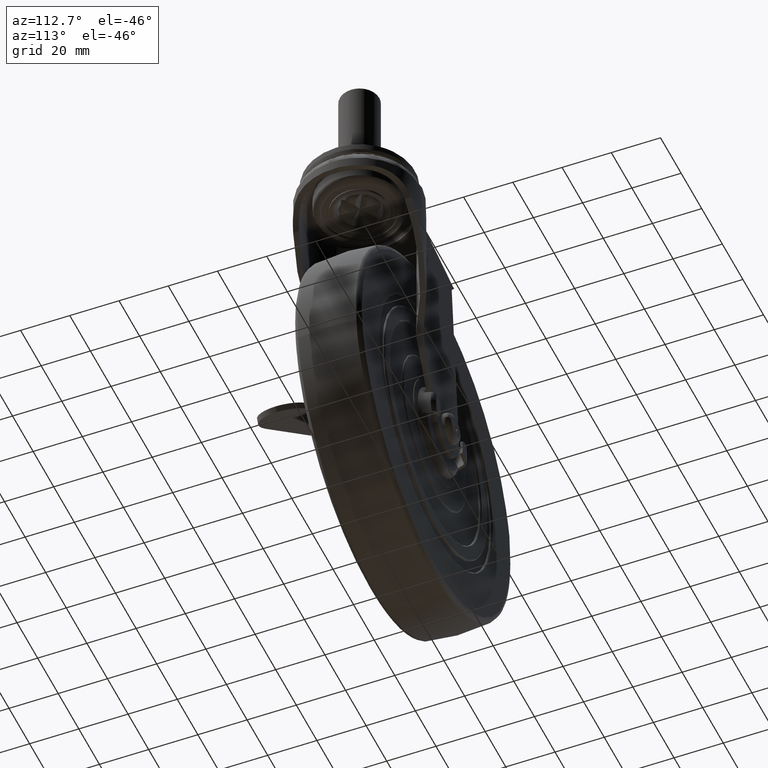
[diagram: clean part render]
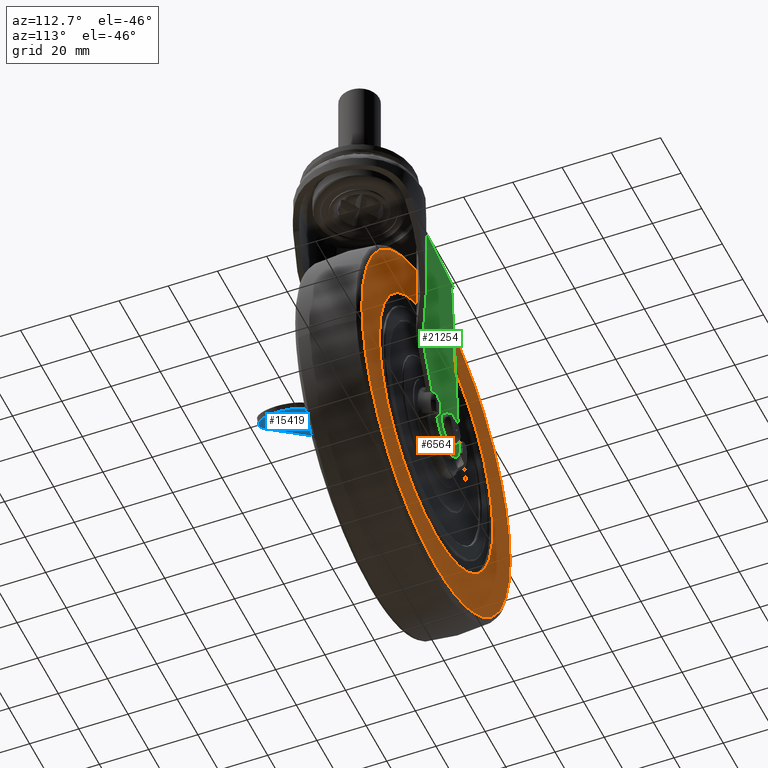
[diagram: same view with three faces highlighted in distinct colors, each labeled with its STEP entity id]
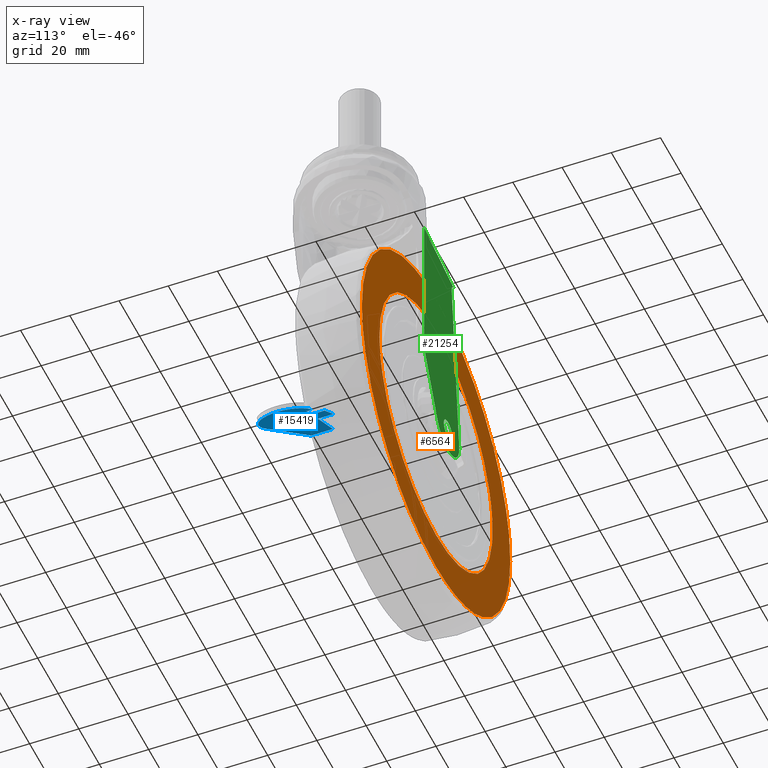
[diagram: x-ray of the same camera — body ghosted, the three highlighted faces saturated]
A machine part, auxiliary view with three faces highlighted in distinct colors.
The next image is the same camera in x-ray (body ghosted, the three faces saturated) — at least one of them is partly hidden behind the body in this view.
Their STEP definitions:

[orange] entity #6564 — the highlighted face is a freeform B-spline surface patch.
#4171=CARTESIAN_POINT('',(54.995668466085057,13.499999668968780,-0.691132332459890));
#4172=VERTEX_POINT('',#4171);
#4182=CARTESIAN_POINT('',(0.0,13.499999668968780,-55.000011048105200));
#4183=VERTEX_POINT('',#4182);
#4184=CARTESIAN_POINT('',(0.0,13.499999668968780,-55.000011048105200));
#4185=CARTESIAN_POINT('',(3.347781942484653,13.499999668968780,-55.000341076088333));
#4186=CARTESIAN_POINT('',(8.927239897805125,13.499999668968760,-54.488947644154479));
#4187=CARTESIAN_POINT('',(16.413846244627230,13.499999668968799,-52.629164713765682));
#4188=CARTESIAN_POINT('',(22.580993613266791,13.499999668968790,-50.292578463047747));
#4189=CARTESIAN_POINT('',(27.933502549120622,13.499999668968790,-47.500123657302566));
#4190=CARTESIAN_POINT('',(33.140719614767903,13.499999668968711,-44.033336507913958));
#4191=CARTESIAN_POINT('',(37.856689479799272,13.499999668968981,-40.085764075532772));
#4192=CARTESIAN_POINT('',(42.056745032800841,13.499999668968529,-35.596299832651752));
#4193=CARTESIAN_POINT('',(45.498373571940007,13.499999668969110,-31.056242675666262));
#4194=CARTESIAN_POINT('',(48.600267459393763,13.499999668968490,-26.011243528702401));
#4195=CARTESIAN_POINT('',(51.195312724148700,13.499999668969020,-20.435448559021012));
#4196=CARTESIAN_POINT('',(53.304053765477789,13.499999668968870,-14.071191661391071));
#4197=CARTESIAN_POINT('',(54.623128346210393,13.499999668968510,-7.605690031383184));
#4198=CARTESIAN_POINT('',(54.967675744143229,13.499999668968981,-2.922790123179348));
#4199=CARTESIAN_POINT('',(54.995668466085057,13.499999668968780,-0.691132332459890));
#4200=B_SPLINE_CURVE_WITH_KNOTS('',3,(#4184,#4185,#4186,#4187,#4188,#4189,#4190,#4191,#4192,#4193,#4194,#4195,#4196,#4197,#4198,#4199),.UNSPECIFIED.,.F.,.U.,(4,1,1,1,1,1,1,1,1,1,1,1,1,4),(0.000000105682389,10.043285382383960,16.738807848603560,23.099589945093410,29.795116193844191,34.816774353317513,41.847134728864098,48.207809127820973,53.229469563336032,58.920650452805710,65.950987468722360,71.642185479836840,79.007288457028011,85.702797099417751),.UNSPECIFIED.);
#4201=EDGE_CURVE('',#4183,#4172,#4200,.T.);
#4203=CARTESIAN_POINT('',(-54.866123052492512,13.499999668968780,3.835329605313900));
#4204=VERTEX_POINT('',#4203);
#4205=CARTESIAN_POINT('',(-54.866123052492512,13.499999668968780,3.835329605313900));
#4206=CARTESIAN_POINT('',(-55.021806254012972,13.499999668968790,1.608484405729714));
#4207=CARTESIAN_POINT('',(-55.069151459829563,13.499999668968790,-3.688184346064365));
#4208=CARTESIAN_POINT('',(-54.035564676681062,13.499999668968700,-11.281503050109819));
#4209=CARTESIAN_POINT('',(-51.769600699594413,13.499999668968959,-19.082604923904661));
#4210=CARTESIAN_POINT('',(-48.403587182004259,13.499999668968620,-26.611103016471741));
#4211=CARTESIAN_POINT('',(-44.004253130844049,13.499999668968840,-33.315848094226730));
#4212=CARTESIAN_POINT('',(-38.542074589162269,13.499999668968790,-39.482625825995846));
#4213=CARTESIAN_POINT('',(-32.006751394409513,13.499999668968661,-45.079406051600472));
#4214=CARTESIAN_POINT('',(-24.885897065271269,13.499999668969220,-49.269841599755203));
#4215=CARTESIAN_POINT('',(-17.916406507856781,13.499999668968540,-52.115638872623173));
#4216=CARTESIAN_POINT('',(-10.221352286121610,13.499999668969000,-54.318556267811182));
#4217=CARTESIAN_POINT('',(-3.994707284808142,13.499999668968700,-55.000691006085482));
#4218=CARTESIAN_POINT('',(0.0,13.499999668968780,-55.000011048105200));
#4219=B_SPLINE_CURVE_WITH_KNOTS('',3,(#4205,#4206,#4207,#4208,#4209,#4210,#4211,#4212,#4213,#4214,#4215,#4216,#4217,#4218),.UNSPECIFIED.,.F.,.U.,(4,1,1,1,1,1,1,1,1,1,1,4),(0.000000108204148,6.696874180152008,15.861139673685701,22.910574902861612,31.017426383925820,40.534158155901231,46.878547111154958,55.690266046681913,66.264423229099350,71.551491662152742,78.248468162343485,90.232414513484017),.UNSPECIFIED.);
#4220=EDGE_CURVE('',#4204,#4183,#4219,.T.);
#4259=CARTESIAN_POINT('',(0.0,13.499999668968780,55.000011048105200));
#4260=VERTEX_POINT('',#4259);
#4261=CARTESIAN_POINT('',(0.0,13.499999668968780,55.000011048105200));
#4262=CARTESIAN_POINT('',(-2.042364625308224,13.499999668968810,55.000031355418777));
#4263=CARTESIAN_POINT('',(-6.772099318087539,13.499999668968650,54.736357727548473));
#4264=CARTESIAN_POINT('',(-13.976715905902431,13.499999668969039,53.390466080855013));
#4265=CARTESIAN_POINT('',(-21.729005557932130,13.499999668968600,50.749393605740103));
#4266=CARTESIAN_POINT('',(-29.101980690597848,13.499999668968901,46.931118987937047));
#4267=CARTESIAN_POINT('',(-36.315088954729930,13.499999668968711,41.636102952244869));
#4268=CARTESIAN_POINT('',(-42.119486384671042,13.499999668968741,35.690577925116251));
#4269=CARTESIAN_POINT('',(-46.712080840961121,13.499999668968879,29.309469872966879));
#4270=CARTESIAN_POINT('',(-50.518679612385348,13.499999668968631,22.305929676143361));
#4271=CARTESIAN_POINT('',(-53.563039771043627,13.499999668969020,13.765488325945110));
#4272=CARTESIAN_POINT('',(-54.634032124479752,13.499999668968529,7.159549824645377));
#4273=CARTESIAN_POINT('',(-54.866123052492512,13.499999668968780,3.835329605313900));
#4274=B_SPLINE_CURVE_WITH_KNOTS('',3,(#4261,#4262,#4263,#4264,#4265,#4266,#4267,#4268,#4269,#4270,#4271,#4272,#4273),.UNSPECIFIED.,.F.,.U.,(4,1,1,1,1,1,1,1,1,1,4),(0.000000097309709,6.127105235625820,14.189219540814261,21.928807559683730,30.635870852770079,39.020378912853552,48.694786556860869,55.466961521336643,62.561585199433807,72.558578721219277,82.555488778801745),.UNSPECIFIED.);
#4275=EDGE_CURVE('',#4260,#4204,#4274,.T.);
#4277=CARTESIAN_POINT('',(54.995668466085057,13.499999668968780,-0.691132332459890));
#4278=CARTESIAN_POINT('',(55.031480317597740,13.499999668968810,2.143430539620995));
#4279=CARTESIAN_POINT('',(54.714730629967796,13.499999668968719,7.023581499392095));
#4280=CARTESIAN_POINT('',(53.220083711498710,13.499999668968821,14.484380382509160));
#4281=CARTESIAN_POINT('',(50.549467393149797,13.499999668968741,22.343526698085832));
#4282=CARTESIAN_POINT('',(46.144499904234657,13.499999668968890,30.451175975280410));
#4283=CARTESIAN_POINT('',(40.535566855575581,13.499999668968620,37.472976617213689));
#4284=CARTESIAN_POINT('',(35.371835578697826,13.499999668968810,42.267754648393307));
#4285=CARTESIAN_POINT('',(29.988931562320371,13.499999668968851,46.250990437048472));
#4286=CARTESIAN_POINT('',(23.783263701094679,13.499999668968540,49.826066634955779));
#4287=CARTESIAN_POINT('',(16.892240169615459,13.499999668968901,52.507449098560564));
#4288=CARTESIAN_POINT('',(8.844401892348229,13.499999668968689,54.487295531176947));
#4289=CARTESIAN_POINT('',(3.515168546071087,13.499999668968970,55.000416904638001));
#4290=CARTESIAN_POINT('',(0.0,13.499999668968780,55.000011048105200));
#4291=B_SPLINE_CURVE_WITH_KNOTS('',3,(#4277,#4278,#4279,#4280,#4281,#4282,#4283,#4284,#4285,#4286,#4287,#4288,#4289,#4290),.UNSPECIFIED.,.F.,.U.,(4,1,1,1,1,1,1,1,1,1,1,4),(0.000000102133299,8.504348749305024,14.627566436543390,22.791810264173630,33.337317889121437,42.181864960075288,49.665658799202049,54.428188428735403,62.252243188470572,71.096848880906833,76.539688789971578,87.085104652988804),.UNSPECIFIED.);
#4292=EDGE_CURVE('',#4172,#4260,#4291,.T.);
#4334=CARTESIAN_POINT('',(-28.854809778042270,13.500000000000000,-65.987537819067441));
#4335=VERTEX_POINT('',#4334);
#4336=CARTESIAN_POINT('',(0.0,13.500000000000000,-72.020519245974285));
#4337=VERTEX_POINT('',#4336);
#4338=CARTESIAN_POINT('',(-28.854809778042270,13.500000000000000,-65.987537819067441));
#4339=CARTESIAN_POINT('',(-24.179838814656200,13.499999999999989,-68.032765088627812));
#4340=CARTESIAN_POINT('',(-14.689355222017740,13.500000000000041,-71.028620834338255));
#4341=CARTESIAN_POINT('',(-4.793516270472587,13.499999999999959,-72.021180549276437));
#4342=CARTESIAN_POINT('',(0.0,13.500000000000000,-72.020519245974285));
#4343=B_SPLINE_CURVE_WITH_KNOTS('',3,(#4338,#4339,#4340,#4341,#4342),.UNSPECIFIED.,.F.,.U.,(4,1,4),(4.347704E-009,15.308157876273050,29.688563123894181),.UNSPECIFIED.);
#4344=EDGE_CURVE('',#4335,#4337,#4343,.T.);
#4346=CARTESIAN_POINT('',(72.020519245974228,13.500000000000000,0.000002977083271));
#4347=VERTEX_POINT('',#4346);
#4348=CARTESIAN_POINT('',(0.0,13.500000000000000,-72.020519245974285));
#4349=CARTESIAN_POINT('',(3.093371989761115,13.499999999999989,-72.020614053189007));
#4350=CARTESIAN_POINT('',(9.427414354195674,13.500000000000050,-71.611819927614462));
#4351=CARTESIAN_POINT('',(19.708543826068130,13.499999999999931,-69.567140692449669));
#4352=CARTESIAN_POINT('',(29.153558674527481,13.499999999999940,-66.122086424608156));
#4353=CARTESIAN_POINT('',(36.699746234581760,13.500000000000050,-62.088159731292798));
#4354=CARTESIAN_POINT('',(42.483688766536361,13.499999999999940,-58.274604843312083));
#4355=CARTESIAN_POINT('',(48.486865460583800,13.500000000000149,-53.500282833937142));
#4356=CARTESIAN_POINT('',(55.418448579243112,13.499999999999950,-46.440242356163743));
#4357=CARTESIAN_POINT('',(61.453653378460963,13.500000000000000,-38.036100173225449));
#4358=CARTESIAN_POINT('',(66.415272317809141,13.500000000000060,-28.473084005044569));
#4359=CARTESIAN_POINT('',(69.742497844027170,13.499999999999840,-18.991317299678560));
#4360=CARTESIAN_POINT('',(71.640427930866238,13.500000000000290,-9.132813490126010));
#4361=CARTESIAN_POINT('',(72.020586068000611,13.499999999999799,-2.946059695334351));
#4362=CARTESIAN_POINT('',(72.020519245974228,13.500000000000000,0.000002977083271));
#4363=B_SPLINE_CURVE_WITH_KNOTS('',3,(#4348,#4349,#4350,#4351,#4352,#4353,#4354,#4355,#4356,#4357,#4358,#4359,#4360,#4361,#4362),.UNSPECIFIED.,.F.,.U.,(4,1,1,1,1,1,1,1,1,1,1,1,4),(0.000000062224558,9.280123593690377,19.002240544330391,31.375838426880659,39.330292622555923,44.633246322074207,52.145814928059110,62.309702039389101,74.241393377502476,83.079654279415578,94.569419783465904,104.291545258997800,113.129746230826900),.UNSPECIFIED.);
#4364=EDGE_CURVE('',#4337,#4347,#4363,.T.);
#4366=CARTESIAN_POINT('',(0.0,13.500000000000000,72.020519245974285));
#4367=VERTEX_POINT('',#4366);
#4368=CARTESIAN_POINT('',(72.020519245974228,13.500000000000000,0.000002977083271));
#4369=CARTESIAN_POINT('',(72.020552757459228,13.500000000000000,2.504151538166491));
#4370=CARTESIAN_POINT('',(71.743666070432241,13.500000000000011,7.807077394000728));
#4371=CARTESIAN_POINT('',(70.262954595543690,13.499999999999989,16.834848197623089));
#4372=CARTESIAN_POINT('',(67.199542136731154,13.500000000000020,26.715005488150130));
#4373=CARTESIAN_POINT('',(62.830546401007780,13.499999999999970,35.597082072625803));
#4374=CARTESIAN_POINT('',(57.959395917034740,13.500000000000060,42.984603802659088));
#4375=CARTESIAN_POINT('',(51.946460997610572,13.499999999999821,50.266414384199138));
#4376=CARTESIAN_POINT('',(44.804181408825748,13.500000000000041,56.699971581566921));
#4377=CARTESIAN_POINT('',(37.705094092384343,13.500000000000011,61.474500518078912));
#4378=CARTESIAN_POINT('',(31.506558732335652,13.499999999999970,64.886152283228853));
#4379=CARTESIAN_POINT('',(23.515701613577829,13.500000000000080,68.341050917957745));
#4380=CARTESIAN_POINT('',(12.668052890248100,13.499999999999840,71.271420176092732));
#4381=CARTESIAN_POINT('',(4.271828098511296,13.500000000000140,72.020834613341847));
#4382=CARTESIAN_POINT('',(0.0,13.500000000000000,72.020519245974285));
#4383=B_SPLINE_CURVE_WITH_KNOTS('',3,(#4368,#4369,#4370,#4371,#4372,#4373,#4374,#4375,#4376,#4377,#4378,#4379,#4380,#4381,#4382),.UNSPECIFIED.,.F.,.U.,(4,1,1,1,1,1,1,1,1,1,1,1,4),(0.000000062549077,7.512458865242252,15.908833197773850,27.398609367366920,38.446446113491753,45.517102409773869,53.913445652955097,66.728819474870704,74.241391176229882,79.544351710146742,87.940702603397852,100.314287685818600,113.129742874955400),.UNSPECIFIED.);
#4384=EDGE_CURVE('',#4347,#4367,#4383,.T.);
#4386=CARTESIAN_POINT('',(-70.908834619511140,13.500000000000000,12.605251590490081));
#4387=VERTEX_POINT('',#4386);
#4388=CARTESIAN_POINT('',(0.0,13.500000000000000,72.020519245974285));
#4389=CARTESIAN_POINT('',(-3.139347687328738,13.500000000000000,72.020627621668567));
#4390=CARTESIAN_POINT('',(-8.371555184817945,13.500000000000000,71.677853867865807));
#4391=CARTESIAN_POINT('',(-16.237219057531661,13.500000000000011,70.292331086672533));
#4392=CARTESIAN_POINT('',(-23.172234749984689,13.499999999999920,68.334416868499957));
#4393=CARTESIAN_POINT('',(-31.802650837138611,13.500000000000121,64.873573383304262));
#4394=CARTESIAN_POINT('',(-40.132038393945521,13.499999999999890,60.130652398954886));
#4395=CARTESIAN_POINT('',(-48.160925361753982,13.500000000000210,53.802450027140587));
#4396=CARTESIAN_POINT('',(-54.692122959891890,13.499999999999989,47.174101563099121));
#4397=CARTESIAN_POINT('',(-60.384364623574001,13.499999999999540,39.643433430117099));
#4398=CARTESIAN_POINT('',(-64.636065268923289,13.500000000000220,32.108550888150162));
#4399=CARTESIAN_POINT('',(-68.427883910432541,13.499999999999989,23.191177432629200));
#4400=CARTESIAN_POINT('',(-70.153771619618070,13.499999999999760,16.855339366022861));
#4401=CARTESIAN_POINT('',(-70.908834619511140,13.500000000000000,12.605251590490081));
#4402=B_SPLINE_CURVE_WITH_KNOTS('',3,(#4388,#4389,#4390,#4391,#4392,#4393,#4394,#4395,#4396,#4397,#4398,#4399,#4400,#4401),.UNSPECIFIED.,.F.,.U.,(4,1,1,1,1,1,1,1,1,1,1,4),(0.000000074242820,9.418038440958199,15.696738128113790,23.937535453129339,31.001076513403550,43.558481913521007,52.584030093962618,61.609720195706771,71.420185030047094,80.838264334711297,87.509374616641352,100.459179846372510),.UNSPECIFIED.);
#4403=EDGE_CURVE('',#4367,#4387,#4402,.T.);
#4518=CARTESIAN_POINT('',(-70.908834619511140,13.500000000000000,12.605251590490081));
#4519=CARTESIAN_POINT('',(-71.675912149359931,13.499999999999989,8.292822979232135));
#4520=CARTESIAN_POINT('',(-72.291762962089535,13.500000000000000,1.030265771864630));
#4521=CARTESIAN_POINT('',(-71.608844185564010,13.500000000000000,-9.227416334176700));
#4522=CARTESIAN_POINT('',(-70.030678479846799,13.499999999999821,-17.479010218087971));
#4523=CARTESIAN_POINT('',(-67.819807617776917,13.500000000000281,-24.534332581611348));
#4524=CARTESIAN_POINT('',(-64.880908246563337,13.499999999999940,-31.586137495818630));
#4525=CARTESIAN_POINT('',(-61.442208843836980,13.499999999999980,-37.854516391167522));
#4526=CARTESIAN_POINT('',(-56.913744070133411,13.500000000000229,-44.316795747102027));
#4527=CARTESIAN_POINT('',(-51.373759860525190,13.499999999999840,-50.793267149140959));
#4528=CARTESIAN_POINT('',(-44.810523642979092,13.500000000000050,-56.638499547988538));
#4529=CARTESIAN_POINT('',(-36.951314129522757,13.500000000000000,-62.013702965176769));
#4530=CARTESIAN_POINT('',(-31.950751949988959,13.500000000000011,-64.633939581137383));
#4531=CARTESIAN_POINT('',(-28.854809778042270,13.500000000000000,-65.987537819067441));
#4532=B_SPLINE_CURVE_WITH_KNOTS('',3,(#4518,#4519,#4520,#4521,#4522,#4523,#4524,#4525,#4526,#4527,#4528,#4529,#4530,#4531),.UNSPECIFIED.,.F.,.U.,(4,1,1,1,1,1,1,1,1,1,1,4),(0.000000070601345,13.140267490761730,21.775294519003591,30.785791141771309,38.294507297507813,43.926052765409160,53.687362747317522,59.694320287188219,67.578506895008076,79.217069017580826,85.974942681141044,96.111675628161080),.UNSPECIFIED.);
#4533=EDGE_CURVE('',#4387,#4335,#4532,.T.);
#6546=CARTESIAN_POINT('',(-79.215244131384452,13.499999834484401,-79.215364268389251));
#6547=CARTESIAN_POINT('',(-79.215244131384452,13.499999834484401,79.215361692734760));
#6548=CARTESIAN_POINT('',(79.215355978431020,13.499999834484401,-79.215364268389251));
#6549=CARTESIAN_POINT('',(79.215355978431020,13.499999834484401,79.215361692734760));
#6550=B_SPLINE_SURFACE_WITH_KNOTS('',1,1,((#6546,#6548),(#6547,#6549)),.UNSPECIFIED.,.F.,.F.,.U.,(2,2),(2,2),(0.0,158.430725961124010),(0.0,158.430600109815490),.UNSPECIFIED.);
#6551=ORIENTED_EDGE('',*,*,#4344,.F.);
#6552=ORIENTED_EDGE('',*,*,#4533,.F.);
#6553=ORIENTED_EDGE('',*,*,#4403,.F.);
#6554=ORIENTED_EDGE('',*,*,#4384,.F.);
#6555=ORIENTED_EDGE('',*,*,#4364,.F.);
#6556=EDGE_LOOP('',(#6551,#6552,#6553,#6554,#6555));
#6557=FACE_OUTER_BOUND('',#6556,.T.);
#6558=ORIENTED_EDGE('',*,*,#4201,.T.);
#6559=ORIENTED_EDGE('',*,*,#4292,.T.);
#6560=ORIENTED_EDGE('',*,*,#4275,.T.);
#6561=ORIENTED_EDGE('',*,*,#4220,.T.);
#6562=EDGE_LOOP('',(#6558,#6559,#6560,#6561));
#6563=FACE_BOUND('',#6562,.T.);
#6564=ADVANCED_FACE('',(#6557,#6563),#6550,.T.);

[blue] entity #15419 — the highlighted face is a freeform B-spline surface patch.
#14012=CARTESIAN_POINT('',(40.999963245468358,-18.300000000000001,7.650000318374440));
#14013=VERTEX_POINT('',#14012);
#14019=CARTESIAN_POINT('',(40.999961096512500,-15.300004000000049,7.649995500696670));
#14020=VERTEX_POINT('',#14019);
#14021=CARTESIAN_POINT('',(40.999961096512500,-15.300004000000049,7.649995500696670));
#14022=CARTESIAN_POINT('',(40.999963245468358,-18.300000000000001,7.650000318374440));
#14023=QUASI_UNIFORM_CURVE('',1,(#14021,#14022),.UNSPECIFIED.,.F.,.U.);
#14024=EDGE_CURVE('',#14020,#14013,#14023,.T.);
#14047=CARTESIAN_POINT('',(33.999969578255197,-14.299996000000020,7.649995500696670));
#14048=VERTEX_POINT('',#14047);
#14049=CARTESIAN_POINT('',(33.999969578255197,-14.299996000000020,7.649995500696670));
#14050=CARTESIAN_POINT('',(40.999961096512500,-15.300004000000049,7.649995500696670));
#14051=QUASI_UNIFORM_CURVE('',1,(#14049,#14050),.UNSPECIFIED.,.F.,.U.);
#14052=EDGE_CURVE('',#14048,#14020,#14051,.T.);
#14073=CARTESIAN_POINT('',(33.999993218591328,-18.300000000000001,7.649995500696690));
#14074=VERTEX_POINT('',#14073);
#14075=CARTESIAN_POINT('',(33.999993218591328,-18.300000000000001,7.649995500696690));
#14076=CARTESIAN_POINT('',(33.999969578255197,-14.299996000000020,7.649995500696670));
#14077=QUASI_UNIFORM_CURVE('',1,(#14075,#14076),.UNSPECIFIED.,.F.,.U.);
#14078=EDGE_CURVE('',#14074,#14048,#14077,.T.);
#14274=CARTESIAN_POINT('',(40.999965394424201,-20.600000000000001,7.650005136052210));
#14275=VERTEX_POINT('',#14274);
#14281=CARTESIAN_POINT('',(40.999963245468358,-18.300000000000001,7.650000318374440));
#14282=CARTESIAN_POINT('',(40.999965394424201,-20.600000000000001,7.650005136052210));
#14283=QUASI_UNIFORM_CURVE('',1,(#14281,#14282),.UNSPECIFIED.,.F.,.U.);
#14284=EDGE_CURVE('',#14013,#14275,#14283,.T.);
#14334=CARTESIAN_POINT('',(34.000016858927353,-20.600000000000001,7.650004655922660));
#14335=VERTEX_POINT('',#14334);
#14347=CARTESIAN_POINT('',(33.999993218591328,-18.300000000000001,7.649995500696690));
#14348=CARTESIAN_POINT('',(34.000016858927353,-20.600000000000001,7.650004655922660));
#14349=QUASI_UNIFORM_CURVE('',1,(#14347,#14348),.UNSPECIFIED.,.F.,.U.);
#14350=EDGE_CURVE('',#14074,#14335,#14349,.T.);
#14455=CARTESIAN_POINT('',(55.749930142175486,-29.253705099463300,7.650000554952510));
#14456=VERTEX_POINT('',#14455);
#14462=CARTESIAN_POINT('',(47.000003697440697,-18.532556818462499,7.649996526334370));
#14463=VERTEX_POINT('',#14462);
#14464=CARTESIAN_POINT('',(55.749930142175486,-29.253705099463300,7.650000554952510));
#14465=CARTESIAN_POINT('',(55.746172282287517,-28.279292216724279,7.650000350786489));
#14466=CARTESIAN_POINT('',(55.541463006196871,-26.799264917748008,7.649999999954022));
#14467=CARTESIAN_POINT('',(54.865706851744562,-24.883370505496782,7.649999461737962));
#14468=CARTESIAN_POINT('',(53.995325281287244,-23.221485649451211,7.649998936712389));
#14469=CARTESIAN_POINT('',(52.731217425933018,-21.621192990497999,7.649998343965866));
#14470=CARTESIAN_POINT('',(51.085278884295512,-20.234145559358879,7.649997717588434));
#14471=CARTESIAN_POINT('',(49.216897572366307,-19.165483003378331,7.649997112146379));
#14472=CARTESIAN_POINT('',(47.801221252086130,-18.699808445380071,7.649996725218433));
#14473=CARTESIAN_POINT('',(47.000003697440697,-18.532556818462499,7.649996526334370));
#14474=B_SPLINE_CURVE_WITH_KNOTS('',3,(#14464,#14465,#14466,#14467,#14468,#14469,#14470,#14471,#14472,#14473),.UNSPECIFIED.,.F.,.U.,(4,1,1,1,1,1,1,4),(0.000000178750062,2.923146095537129,4.443213145811770,6.080183999034654,8.535590506004521,10.523381398728770,12.511152358452611,14.966591744030250),.UNSPECIFIED.);
#14475=EDGE_CURVE('',#14456,#14463,#14474,.T.);
#14521=CARTESIAN_POINT('',(40.453927803311949,-39.426237043222763,7.649996449171190));
#14522=VERTEX_POINT('',#14521);
#14528=CARTESIAN_POINT('',(55.749930142175486,-29.346182706631350,7.650000554952510));
#14529=VERTEX_POINT('',#14528);
#14530=CARTESIAN_POINT('',(40.453927803311949,-39.426237043222763,7.649996449171190));
#14531=CARTESIAN_POINT('',(41.595332665174922,-39.911476554674088,7.649996622436192));
#14532=CARTESIAN_POINT('',(43.598793210361293,-40.383458198112073,7.649996967410591));
#14533=CARTESIAN_POINT('',(46.430880666484839,-40.256998961129398,7.649997540440812));
#14534=CARTESIAN_POINT('',(48.896671620319623,-39.601614827712382,7.649998098013776));
#14535=CARTESIAN_POINT('',(50.994303004055553,-38.460850312830807,7.649998635077220));
#14536=CARTESIAN_POINT('',(52.619674106390342,-37.053864050362250,7.649999107492556));
#14537=CARTESIAN_POINT('',(53.961148034144870,-35.448682135416483,7.649999545149609));
#14538=CARTESIAN_POINT('',(54.988591193526283,-33.550638099702063,7.649999952279775));
#14539=CARTESIAN_POINT('',(55.616230253330073,-31.374902020021729,7.650000310307753));
#14540=CARTESIAN_POINT('',(55.747142882333911,-30.022598136868499,7.650000481638275));
#14541=CARTESIAN_POINT('',(55.749930142175486,-29.346182706631350,7.650000554952510));
#14542=B_SPLINE_CURVE_WITH_KNOTS('',3,(#14530,#14531,#14532,#14533,#14534,#14535,#14536,#14537,#14538,#14539,#14540,#14541),.UNSPECIFIED.,.F.,.U.,(4,1,1,1,1,1,1,1,1,4),(0.000000251570540,3.720427447893638,6.088020162165291,8.455618859021371,11.330382476227900,13.190695094614250,14.881790098534520,17.587630541360479,19.617004962647808,21.646280330760820),.UNSPECIFIED.);
#14543=EDGE_CURVE('',#14522,#14529,#14542,.T.);
#14842=CARTESIAN_POINT('',(17.093863742288349,-29.515555108079450,7.649997383010870));
#14843=VERTEX_POINT('',#14842);
#14852=CARTESIAN_POINT('',(17.093863742288349,-29.515555108079450,7.649997383010870));
#14853=CARTESIAN_POINT('',(40.453927803311949,-39.426237043222763,7.649996449171190));
#14854=QUASI_UNIFORM_CURVE('',1,(#14852,#14853),.UNSPECIFIED.,.F.,.U.);
#14855=EDGE_CURVE('',#14843,#14522,#14854,.T.);
#14905=CARTESIAN_POINT('',(17.093863900046198,-20.600000000000001,7.649995500696680));
#14906=VERTEX_POINT('',#14905);
#14915=CARTESIAN_POINT('',(17.093863900046198,-20.600000000000001,7.649995500696680));
#14916=CARTESIAN_POINT('',(17.093863742288349,-29.515555108079450,7.649997383010870));
#14917=QUASI_UNIFORM_CURVE('',1,(#14915,#14916),.UNSPECIFIED.,.F.,.U.);
#14918=EDGE_CURVE('',#14906,#14843,#14917,.T.);
#15381=CARTESIAN_POINT('',(15.162994026287990,-41.598250667537542,7.649995434477088));
#15382=CARTESIAN_POINT('',(57.680801586236882,-41.598250667537542,7.649996892634682));
#15383=CARTESIAN_POINT('',(15.162994026287990,-13.001318484846090,7.649995434477088));
#15384=CARTESIAN_POINT('',(57.680801586236868,-13.001318484846090,7.649996892634682));
#15385=B_SPLINE_SURFACE_WITH_KNOTS('',1,1,((#15381,#15383),(#15382,#15384)),.UNSPECIFIED.,.F.,.F.,.U.,(2,2),(2,2),(0.0,42.517807559948899),(0.0,28.596932182691450),.UNSPECIFIED.);
#15386=ORIENTED_EDGE('',*,*,#14855,.F.);
#15387=ORIENTED_EDGE('',*,*,#14918,.F.);
#15388=CARTESIAN_POINT('',(17.093863900046198,-20.600000000000001,7.649995500696680));
#15389=CARTESIAN_POINT('',(34.000016858927353,-20.600000000000001,7.650004655922660));
#15390=QUASI_UNIFORM_CURVE('',1,(#15388,#15389),.UNSPECIFIED.,.F.,.U.);
#15391=EDGE_CURVE('',#14906,#14335,#15390,.T.);
#15392=ORIENTED_EDGE('',*,*,#15391,.T.);
#15393=ORIENTED_EDGE('',*,*,#14350,.F.);
#15394=ORIENTED_EDGE('',*,*,#14078,.T.);
#15395=ORIENTED_EDGE('',*,*,#14052,.T.);
#15396=ORIENTED_EDGE('',*,*,#14024,.T.);
#15397=ORIENTED_EDGE('',*,*,#14284,.T.);
#15398=CARTESIAN_POINT('',(47.000004292189097,-20.600000000000001,7.649997551972080));
#15399=VERTEX_POINT('',#15398);
#15400=CARTESIAN_POINT('',(40.999965394424201,-20.600000000000001,7.650005136052210));
#15401=CARTESIAN_POINT('',(47.000004292189097,-20.600000000000001,7.649997551972080));
#15402=QUASI_UNIFORM_CURVE('',1,(#15400,#15401),.UNSPECIFIED.,.F.,.U.);
#15403=EDGE_CURVE('',#14275,#15399,#15402,.T.);
#15404=ORIENTED_EDGE('',*,*,#15403,.T.);
#15405=CARTESIAN_POINT('',(47.000003697440697,-18.532556818462499,7.649996526334370));
#15406=CARTESIAN_POINT('',(47.000004292189097,-20.600000000000001,7.649997551972080));
#15407=QUASI_UNIFORM_CURVE('',1,(#15405,#15406),.UNSPECIFIED.,.F.,.U.);
#15408=EDGE_CURVE('',#14463,#15399,#15407,.T.);
#15409=ORIENTED_EDGE('',*,*,#15408,.F.);
#15410=ORIENTED_EDGE('',*,*,#14475,.F.);
#15411=CARTESIAN_POINT('',(55.749930142175486,-29.253705099463300,7.650000554952510));
#15412=CARTESIAN_POINT('',(55.749930142175486,-29.346182706631350,7.650000554952510));
#15413=QUASI_UNIFORM_CURVE('',1,(#15411,#15412),.UNSPECIFIED.,.F.,.U.);
#15414=EDGE_CURVE('',#14456,#14529,#15413,.T.);
#15415=ORIENTED_EDGE('',*,*,#15414,.T.);
#15416=ORIENTED_EDGE('',*,*,#14543,.F.);
#15417=EDGE_LOOP('',(#15386,#15387,#15392,#15393,#15394,#15395,#15396,#15397,#15404,#15409,#15410,#15415,#15416));
#15418=FACE_OUTER_BOUND('',#15417,.T.);
#15419=ADVANCED_FACE('',(#15418),#15385,.F.);

[green] entity #21254 — the highlighted face is a freeform B-spline surface patch.
#16329=CARTESIAN_POINT('',(-2.901496784675302,18.334030646830371,-2.753417639767920));
#16330=VERTEX_POINT('',#16329);
#16336=CARTESIAN_POINT('',(-4.000000000000002,18.334465955600599,4.898425E-016));
#16337=VERTEX_POINT('',#16336);
#16338=CARTESIAN_POINT('',(-4.000000000000002,18.334465955600599,4.898425E-016));
#16339=CARTESIAN_POINT('',(-4.000186978926217,18.334466029689128,-0.411276320054012));
#16340=CARTESIAN_POINT('',(-3.896621538970352,18.334424989343699,-1.075457592719830));
#16341=CARTESIAN_POINT('',(-3.497439818810864,18.334266803823692,-2.010709495479771));
#16342=CARTESIAN_POINT('',(-3.141119167480206,18.334125603055568,-2.501075199067633));
#16343=CARTESIAN_POINT('',(-2.901496784675302,18.334030646830371,-2.753417639767920));
#16344=B_SPLINE_CURVE_WITH_KNOTS('',3,(#16338,#16339,#16340,#16341,#16342,#16343),.UNSPECIFIED.,.F.,.U.,(4,1,1,4),(0.000000084492206,1.233783273365220,1.992990881501324,3.036943765946316),.UNSPECIFIED.);
#16345=EDGE_CURVE('',#16337,#16330,#16344,.T.);
#16347=CARTESIAN_POINT('',(-0.000004038980188,18.332880859512191,3.999999999997961));
#16348=VERTEX_POINT('',#16347);
#16349=CARTESIAN_POINT('',(-0.000004038980188,18.332880859512191,3.999999999997961));
#16350=CARTESIAN_POINT('',(-0.490950816789638,18.333075409162909,4.000451763579395));
#16351=CARTESIAN_POINT('',(-1.276026356432990,18.333386514518828,3.853518467009528));
#16352=CARTESIAN_POINT('',(-2.181976887325861,18.333745519541960,3.383310323597489));
#16353=CARTESIAN_POINT('',(-2.900119593019933,18.334030101127809,2.808716351218227));
#16354=CARTESIAN_POINT('',(-3.449571156487548,18.334247834728640,2.104610670257794));
#16355=CARTESIAN_POINT('',(-3.889286839823112,18.334422082806999,1.112504477959454));
#16356=CARTESIAN_POINT('',(-4.000224923062332,18.334466044731968,0.425447641421935));
#16357=CARTESIAN_POINT('',(-4.000000000000002,18.334465955600599,4.898425E-016));
#16358=B_SPLINE_CURVE_WITH_KNOTS('',3,(#16349,#16350,#16351,#16352,#16353,#16354,#16355,#16356,#16357),.UNSPECIFIED.,.F.,.U.,(4,1,1,1,1,1,4),(0.000000347896915,1.472656552740296,2.356297879869888,3.043539142623177,4.221617580520239,5.007054752006348,6.283341017116672),.UNSPECIFIED.);
#16359=EDGE_CURVE('',#16348,#16337,#16358,.T.);
#16361=CARTESIAN_POINT('',(4.000000000000002,18.331295760222709,0.0));
#16362=VERTEX_POINT('',#16361);
#16363=CARTESIAN_POINT('',(4.000000000000002,18.331295760222709,0.0));
#16364=CARTESIAN_POINT('',(4.000725465040881,18.331295472739470,0.556456038089757));
#16365=CARTESIAN_POINT('',(3.805585330027467,18.331372801783711,1.472125376791745));
#16366=CARTESIAN_POINT('',(3.112522361101186,18.331647444911329,2.596738278507035));
#16367=CARTESIAN_POINT('',(2.328180538000161,18.331958259514082,3.307650014726825));
#16368=CARTESIAN_POINT('',(1.275966007178677,18.332375225219359,3.853449347425440));
#16369=CARTESIAN_POINT('',(0.490955624351986,18.332686304755281,4.000463930783552));
#16370=CARTESIAN_POINT('',(-0.000004038980188,18.332880859512191,3.999999999997961));
#16371=B_SPLINE_CURVE_WITH_KNOTS('',3,(#16363,#16364,#16365,#16366,#16367,#16368,#16369,#16370),.UNSPECIFIED.,.F.,.U.,(4,1,1,1,1,4),(0.000000342366770,1.669017635847503,2.749020923182505,3.927045736211411,4.810689361324560,6.283345570102918),.UNSPECIFIED.);
#16372=EDGE_CURVE('',#16362,#16348,#16371,.T.);
#16374=CARTESIAN_POINT('',(2.582968974798687,18.331857306672351,-3.054223245486821));
#16375=VERTEX_POINT('',#16374);
#16376=CARTESIAN_POINT('',(2.582968974798687,18.331857306672351,-3.054223245486821));
#16377=CARTESIAN_POINT('',(2.998143767088656,18.331692781996530,-2.704018207471778));
#16378=CARTESIAN_POINT('',(3.476173526279653,18.331503348368940,-2.092895190800340));
#16379=CARTESIAN_POINT('',(3.907267324803428,18.331332512222929,-1.013486639717823));
#16380=CARTESIAN_POINT('',(4.000209182022129,18.331295679063281,-0.398236630153231));
#16381=CARTESIAN_POINT('',(4.000000000000002,18.331295760222709,0.0));
#16382=B_SPLINE_CURVE_WITH_KNOTS('',3,(#16376,#16377,#16378,#16379,#16380,#16381),.UNSPECIFIED.,.F.,.U.,(4,1,1,4),(0.000000115096328,1.629073188038235,2.280656339716572,3.475313489290532),.UNSPECIFIED.);
#16383=EDGE_CURVE('',#16375,#16362,#16382,.T.);
#16418=CARTESIAN_POINT('',(0.000004038980225,18.332880856311110,-3.999999999997961));
#16419=VERTEX_POINT('',#16418);
#16420=CARTESIAN_POINT('',(0.000004038980225,18.332880856311110,-3.999999999997961));
#16421=CARTESIAN_POINT('',(0.438789514906773,18.332706979109311,-4.000246912728518));
#16422=CARTESIAN_POINT('',(1.374578640445737,18.332336154632369,-3.844388570539303));
#16423=CARTESIAN_POINT('',(2.203553046516648,18.332007657546590,-3.375706976193106));
#16424=CARTESIAN_POINT('',(2.582968974798687,18.331857306672351,-3.054223245486821));
#16425=B_SPLINE_CURVE_WITH_KNOTS('',3,(#16420,#16421,#16422,#16423,#16424),.UNSPECIFIED.,.F.,.U.,(4,1,4),(0.000000077160998,1.316290068003222,2.808031822764251),.UNSPECIFIED.);
#16426=EDGE_CURVE('',#16419,#16375,#16425,.T.);
#16428=CARTESIAN_POINT('',(-2.901496784675302,18.334030646830371,-2.753417639767920));
#16429=CARTESIAN_POINT('',(-2.645534097784959,18.333929215368340,-3.023344057414001));
#16430=CARTESIAN_POINT('',(-2.137724279086770,18.333727983333379,-3.427076619263292));
#16431=CARTESIAN_POINT('',(-1.149580424966679,18.333336407213260,-3.881713032074972));
#16432=CARTESIAN_POINT('',(-0.439645758325685,18.333055078273929,-4.000247685087641));
#16433=CARTESIAN_POINT('',(0.000004038980225,18.332880856311110,-3.999999999997961));
#16434=B_SPLINE_CURVE_WITH_KNOTS('',3,(#16428,#16429,#16430,#16431,#16432,#16433),.UNSPECIFIED.,.F.,.U.,(4,1,1,4),(0.000000082321320,1.115967398425874,1.927526771817834,3.246403249784012),.UNSPECIFIED.);
#16435=EDGE_CURVE('',#16330,#16419,#16434,.T.);
#19450=CARTESIAN_POINT('',(23.129941502737498,18.323715053706199,22.127056316279550));
#19451=VERTEX_POINT('',#19450);
#19462=CARTESIAN_POINT('',(23.129941502737800,18.323715053706199,86.726631020427803));
#19463=VERTEX_POINT('',#19462);
#19464=CARTESIAN_POINT('',(23.129941502737800,18.323715053706199,86.726631020427803));
#19465=CARTESIAN_POINT('',(23.129941502737498,18.323715053706199,22.127056316279550));
#19466=QUASI_UNIFORM_CURVE('',1,(#19464,#19465),.UNSPECIFIED.,.F.,.U.);
#19467=EDGE_CURVE('',#19463,#19451,#19466,.T.);
#20302=CARTESIAN_POINT('',(-5.567000785369911,18.335086917931449,81.666587843340594));
#20303=VERTEX_POINT('',#20302);
#20304=CARTESIAN_POINT('',(-5.567000785369911,18.335086917931449,81.666587843340594));
#20305=CARTESIAN_POINT('',(23.129941502737800,18.323715053706199,86.726631020427803));
#20306=QUASI_UNIFORM_CURVE('',1,(#20304,#20305),.UNSPECIFIED.,.F.,.U.);
#20307=EDGE_CURVE('',#20303,#19463,#20306,.T.);
#20360=CARTESIAN_POINT('',(-3.643857588381620,18.334324825472098,78.998191746042693));
#20361=VERTEX_POINT('',#20360);
#20362=CARTESIAN_POINT('',(-3.643857588381620,18.334324825472098,78.998191746042693));
#20363=CARTESIAN_POINT('',(-3.613942211896756,18.334312970773581,79.314642432483382));
#20364=CARTESIAN_POINT('',(-3.677082762932141,18.334337991759028,79.958899335666175));
#20365=CARTESIAN_POINT('',(-4.089229839489668,18.334501315103591,80.753099387991014));
#20366=CARTESIAN_POINT('',(-4.735814158643292,18.334757539931179,81.362051939802541));
#20367=CARTESIAN_POINT('',(-5.257302656008904,18.334964192484080,81.594913799161105));
#20368=CARTESIAN_POINT('',(-5.567000785369911,18.335086917931449,81.666587843340594));
#20369=B_SPLINE_CURVE_WITH_KNOTS('',3,(#20362,#20363,#20364,#20365,#20366,#20367,#20368),.UNSPECIFIED.,.F.,.U.,(4,1,1,1,4),(0.000000397006766,0.953545058622590,1.907040945779153,2.636262651425704,3.589807669916418),.UNSPECIFIED.);
#20370=EDGE_CURVE('',#20361,#20303,#20369,.T.);
#20553=CARTESIAN_POINT('',(-10.951998730148199,18.337220854880751,1.026510504004836));
#20554=VERTEX_POINT('',#20553);
#20555=CARTESIAN_POINT('',(9.872375000000000,18.328968688212299,-4.851413999999890));
#20556=VERTEX_POINT('',#20555);
#20557=CARTESIAN_POINT('',(-10.951998730148199,18.337220854880751,1.026510504004836));
#20558=CARTESIAN_POINT('',(-11.033911347480540,18.337253314755859,0.154885415833821));
#20559=CARTESIAN_POINT('',(-10.994069461162089,18.337237526435420,-1.367496661905206));
#20560=CARTESIAN_POINT('',(-10.534605248827800,18.337055452520111,-3.311089637106963));
#20561=CARTESIAN_POINT('',(-9.877131294238513,18.336794912408639,-4.937883425238502));
#20562=CARTESIAN_POINT('',(-8.877713299984865,18.336398868620439,-6.620772058251646));
#20563=CARTESIAN_POINT('',(-7.424455583090687,18.335822979758088,-8.222608503003507));
#20564=CARTESIAN_POINT('',(-5.645530495784179,18.335118037247110,-9.513605153581093));
#20565=CARTESIAN_POINT('',(-3.587884258032837,18.334302644673379,-10.490812617542611));
#20566=CARTESIAN_POINT('',(-1.203953802065851,18.333357954008871,-11.039691853957351));
#20567=CARTESIAN_POINT('',(1.479329936861244,18.332294637295579,-11.006096754110191));
#20568=CARTESIAN_POINT('',(4.159765732685709,18.331232449149280,-10.318349797202240));
#20569=CARTESIAN_POINT('',(6.330690670156146,18.330372167123901,-9.098922899528629));
#20570=CARTESIAN_POINT('',(8.364912840858699,18.329566056908490,-7.302568993530070));
#20571=CARTESIAN_POINT('',(9.363979914999222,18.329170152180890,-5.887487031087431));
#20572=CARTESIAN_POINT('',(9.872375000000000,18.328968688212299,-4.851413999999890));
#20573=B_SPLINE_CURVE_WITH_KNOTS('',3,(#20557,#20558,#20559,#20560,#20561,#20562,#20563,#20564,#20565,#20566,#20567,#20568,#20569,#20570,#20571,#20572),.UNSPECIFIED.,.F.,.U.,(4,1,1,1,1,1,1,1,1,1,1,1,1,4),(0.000000622115351,2.626349832467128,4.536391716311996,5.968986082866227,7.879113749666882,10.386127653462840,12.415578971395950,14.445158634101000,17.190766508246440,19.697692917284659,22.443510857021082,25.428078757556271,27.099397977447911,30.561377312652400),.UNSPECIFIED.);
#20574=EDGE_CURVE('',#20554,#20556,#20573,.T.);
#20696=CARTESIAN_POINT('',(23.129941502737498,18.323715053706199,22.127056316279550));
#20697=CARTESIAN_POINT('',(9.872375000000000,18.328968688212299,-4.851413999999890));
#20698=QUASI_UNIFORM_CURVE('',1,(#20696,#20697),.UNSPECIFIED.,.F.,.U.);
#20699=EDGE_CURVE('',#19451,#20556,#20698,.T.);
#20756=CARTESIAN_POINT('',(-10.951998730148199,18.337220854880751,1.026510504004836));
#20757=CARTESIAN_POINT('',(-3.643857588381620,18.334324825472098,78.998191746042693));
#20758=QUASI_UNIFORM_CURVE('',1,(#20756,#20757),.UNSPECIFIED.,.F.,.U.);
#20759=EDGE_CURVE('',#20554,#20361,#20758,.T.);
#21233=CARTESIAN_POINT('',(-12.704799564114680,18.337915445018439,-15.881397693574209));
#21234=CARTESIAN_POINT('',(24.834733360448389,18.323039488297741,-15.881397693574209));
#21235=CARTESIAN_POINT('',(-12.704799564114680,18.337915445018439,91.608076419745132));
#21236=CARTESIAN_POINT('',(24.834733360448389,18.323039488297741,91.608076419745132));
#21237=B_SPLINE_SURFACE_WITH_KNOTS('',1,1,((#21233,#21235),(#21234,#21236)),.UNSPECIFIED.,.F.,.F.,.U.,(2,2),(2,2),(0.0,37.539535872043530),(0.0,107.489474113319400),.UNSPECIFIED.);
#21238=ORIENTED_EDGE('',*,*,#20307,.T.);
#21239=ORIENTED_EDGE('',*,*,#19467,.T.);
#21240=ORIENTED_EDGE('',*,*,#20699,.T.);
#21241=ORIENTED_EDGE('',*,*,#20574,.F.);
#21242=ORIENTED_EDGE('',*,*,#20759,.T.);
#21243=ORIENTED_EDGE('',*,*,#20370,.T.);
#21244=EDGE_LOOP('',(#21238,#21239,#21240,#21241,#21242,#21243));
#21245=FACE_OUTER_BOUND('',#21244,.T.);
#21246=ORIENTED_EDGE('',*,*,#16372,.T.);
#21247=ORIENTED_EDGE('',*,*,#16359,.T.);
#21248=ORIENTED_EDGE('',*,*,#16345,.T.);
#21249=ORIENTED_EDGE('',*,*,#16435,.T.);
#21250=ORIENTED_EDGE('',*,*,#16426,.T.);
#21251=ORIENTED_EDGE('',*,*,#16383,.T.);
#21252=EDGE_LOOP('',(#21246,#21247,#21248,#21249,#21250,#21251));
#21253=FACE_BOUND('',#21252,.T.);
#21254=ADVANCED_FACE('',(#21245,#21253),#21237,.F.);